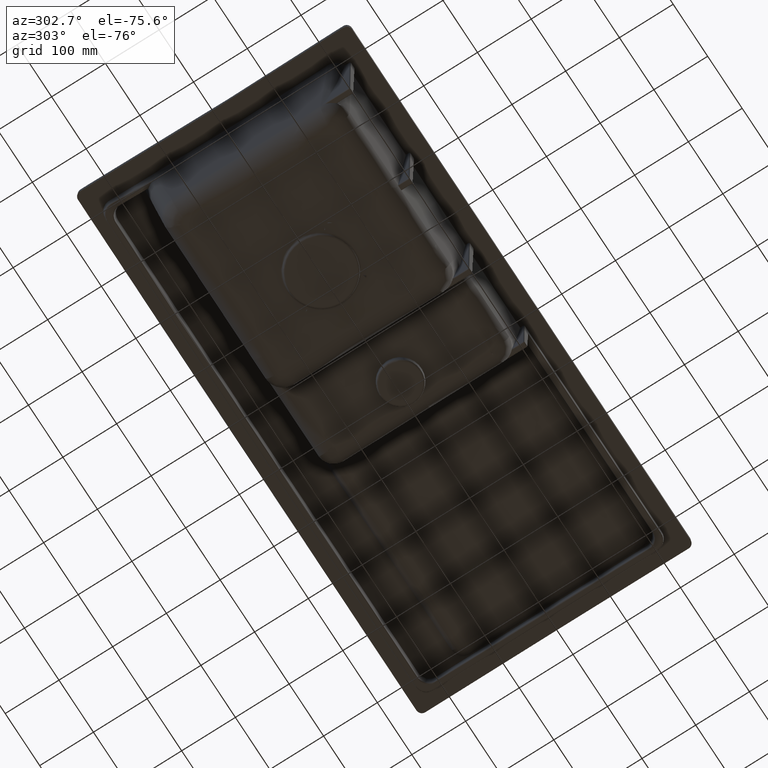
[diagram: clean part render]
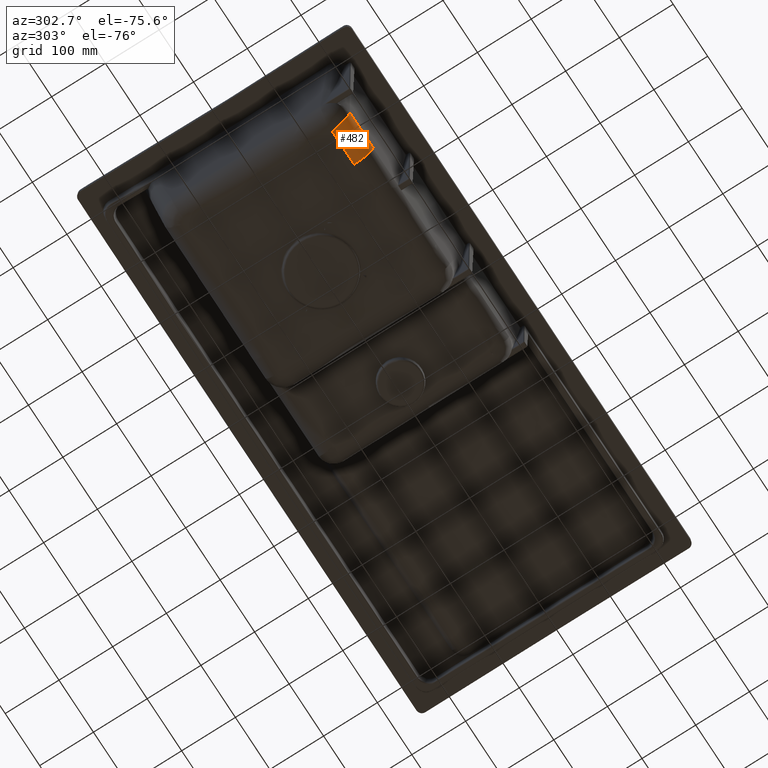
[diagram: same view with one face highlighted and labeled with its STEP entity id]
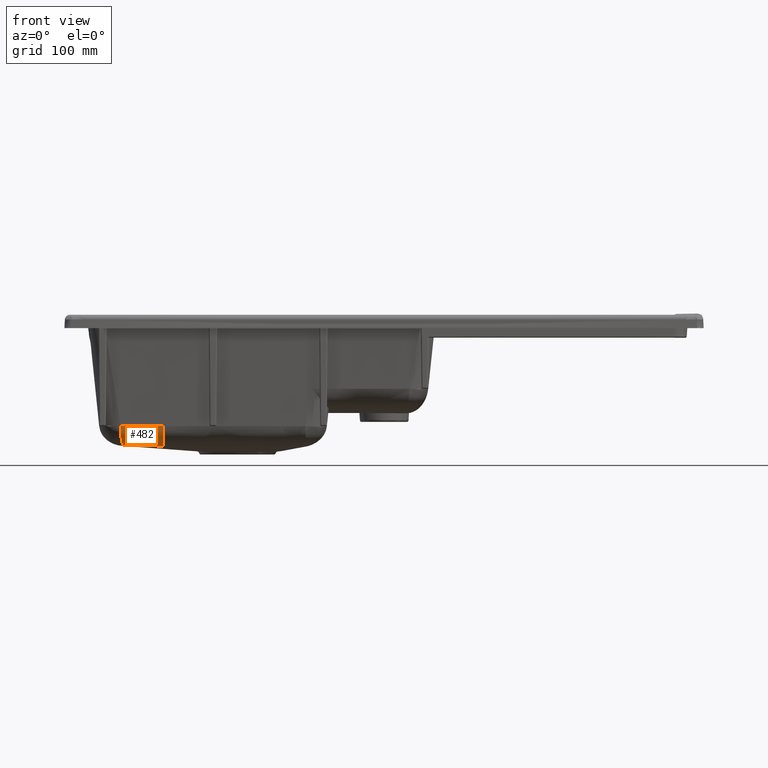
[diagram: same view with one face highlighted and labeled with its STEP entity id]
A machine part, auxiliary view. The second image highlights one B-rep face of the part: STEP entity #482.
A second angle (front view) of the same face is appended — the face is thin or edge-on in the first view.
In plain terms, the highlighted face is a freeform B-spline surface patch.
Its self-contained STEP definition (entity closure, byte-faithful):
#482=ADVANCED_FACE('',(#984),#796,.F.);
#796=B_SPLINE_SURFACE_WITH_KNOTS('',3,3,((#7439,#7440,#7441,#7442,#7443,
#7444,#7445),(#7446,#7447,#7448,#7449,#7450,#7451,#7452),(#7453,#7454,#7455,
#7456,#7457,#7458,#7459),(#7460,#7461,#7462,#7463,#7464,#7465,#7466),(#7467,
#7468,#7469,#7470,#7471,#7472,#7473),(#7474,#7475,#7476,#7477,#7478,#7479,
#7480),(#7481,#7482,#7483,#7484,#7485,#7486,#7487),(#7488,#7489,#7490,#7491,
#7492,#7493,#7494),(#7495,#7496,#7497,#7498,#7499,#7500,#7501),(#7502,#7503,
#7504,#7505,#7506,#7507,#7508),(#7509,#7510,#7511,#7512,#7513,#7514,#7515),
(#7516,#7517,#7518,#7519,#7520,#7521,#7522),(#7523,#7524,#7525,#7526,#7527,
#7528,#7529)),.UNSPECIFIED.,.F.,.F.,.F.,(4,3,3,3,4),(4,3,4),(0.,0.25,0.5,
0.75,1.),(0.,0.5,1.),.UNSPECIFIED.);
#984=FACE_OUTER_BOUND('',#1323,.T.);
#1323=EDGE_LOOP('',(#1813,#1814,#1815,#1816));
#1813=ORIENTED_EDGE('',*,*,#3951,.T.);
#1814=ORIENTED_EDGE('',*,*,#3952,.T.);
#1815=ORIENTED_EDGE('',*,*,#3953,.T.);
#1816=ORIENTED_EDGE('',*,*,#3954,.T.);
#3408=VERTEX_POINT('',#7402);
#3409=VERTEX_POINT('',#7403);
#3410=VERTEX_POINT('',#7411);
#3411=VERTEX_POINT('',#7432);
#3951=EDGE_CURVE('',#3408,#3409,#4767,.T.);
#3952=EDGE_CURVE('',#3409,#3410,#4768,.T.);
#3953=EDGE_CURVE('',#3410,#3411,#4769,.T.);
#3954=EDGE_CURVE('',#3411,#3408,#4770,.T.);
#4767=B_SPLINE_CURVE_WITH_KNOTS('',3,(#7389,#7390,#7391,#7392,#7393,#7394,
#7395,#7396,#7397,#7398,#7399,#7400,#7401),.UNSPECIFIED.,.F.,.F.,(4,3,3,
3,4),(0.,0.245327949630482,0.496885299753655,0.748442649876827,1.),
 .UNSPECIFIED.);
#4768=B_SPLINE_CURVE_WITH_KNOTS('',3,(#7404,#7405,#7406,#7407,#7408,#7409,
#7410),.UNSPECIFIED.,.F.,.F.,(4,3,4),(0.,0.502999999999009,1.),
 .UNSPECIFIED.);
#4769=B_SPLINE_CURVE_WITH_KNOTS('',3,(#7412,#7413,#7414,#7415,#7416,#7417,
#7418,#7419,#7420,#7421,#7422,#7423,#7424,#7425,#7426,#7427,#7428,#7429,
#7430,#7431),.UNSPECIFIED.,.F.,.F.,(4,2,2,2,2,2,2,2,2,4),(0.,0.249999999999994,
0.499999999999989,0.515624999999989,0.531249999999989,0.56249999999999,
0.624999999999992,0.749999999999994,0.874999999999997,1.),.UNSPECIFIED.);
#4770=B_SPLINE_CURVE_WITH_KNOTS('',3,(#7433,#7434,#7435,#7436,#7437,#7438),
 .UNSPECIFIED.,.F.,.F.,(4,2,4),(0.,0.5,1.),.UNSPECIFIED.);
#7389=CARTESIAN_POINT('',(-345.397631166243,-135.522305942543,-205.714445221993));
#7390=CARTESIAN_POINT('',(-345.363334008533,-139.306731002015,-205.340106032975));
#7391=CARTESIAN_POINT('',(-345.33619654164,-143.261658922262,-204.467595560662));
#7392=CARTESIAN_POINT('',(-345.318554196168,-147.130433515993,-202.981137501558));
#7393=CARTESIAN_POINT('',(-345.300463873872,-151.097444557697,-201.456935098283));
#7394=CARTESIAN_POINT('',(-345.292523461988,-154.968085021598,-199.280277152789));
#7395=CARTESIAN_POINT('',(-345.29197543667,-158.3689406588,-196.472978926912));
#7396=CARTESIAN_POINT('',(-345.291427411353,-161.769796296002,-193.665680701035));
#7397=CARTESIAN_POINT('',(-345.297986325779,-164.68721107058,-190.221401994709));
#7398=CARTESIAN_POINT('',(-345.304122679175,-166.789692154017,-186.41397434491));
#7399=CARTESIAN_POINT('',(-345.310259032571,-168.892173237454,-182.60654669511));
#7400=CARTESIAN_POINT('',(-345.315347202764,-170.160992974538,-178.452579316537));
#7401=CARTESIAN_POINT('',(-345.314764388947,-170.575434996131,-174.432337449661));
#7402=CARTESIAN_POINT('',(-345.397630760849,-135.522307890016,-205.714464869636));
#7403=CARTESIAN_POINT('',(-345.31336404638,-170.575434673334,-174.432337179253));
#7404=CARTESIAN_POINT('',(-345.314764388947,-170.575434996131,-174.432337449661));
#7405=CARTESIAN_POINT('',(-356.675914044309,-170.579012224646,-174.434666461764));
#7406=CARTESIAN_POINT('',(-368.037080890592,-170.582684579936,-174.437107666763));
#7407=CARTESIAN_POINT('',(-379.39826493816,-170.586414450872,-174.439624224346));
#7408=CARTESIAN_POINT('',(-390.623927903693,-170.590099830305,-174.442110763349));
#7409=CARTESIAN_POINT('',(-401.849610455387,-170.593841098983,-174.444670373296));
#7410=CARTESIAN_POINT('',(-413.0753115024,-170.59759585289,-174.44727778674));
#7411=CARTESIAN_POINT('',(-413.075312759013,-170.597594236271,-174.447281954641));
#7412=CARTESIAN_POINT('',(-413.0753115024,-170.59759585289,-174.44727778674));
#7413=CARTESIAN_POINT('',(-413.020714935479,-170.164755370717,-178.602963989923));
#7414=CARTESIAN_POINT('',(-412.856482709726,-168.75836249909,-182.985440073222));
#7415=CARTESIAN_POINT('',(-412.297965236743,-163.925067014169,-190.930915427477));
#7416=CARTESIAN_POINT('',(-411.901297772451,-160.530505524843,-194.479218476001));
#7417=CARTESIAN_POINT('',(-411.329793941907,-156.340022081265,-197.39928378021));
#7418=CARTESIAN_POINT('',(-411.308437949995,-156.183909269914,-197.505132879861));
#7419=CARTESIAN_POINT('',(-411.252672899248,-155.777076874854,-197.776947025922));
#7420=CARTESIAN_POINT('',(-411.224526035962,-155.572274090589,-197.910915751503));
#7421=CARTESIAN_POINT('',(-411.139286962734,-154.953890858537,-198.306971984841));
#7422=CARTESIAN_POINT('',(-411.081396264107,-154.536334692712,-198.563209649653));
#7423=CARTESIAN_POINT('',(-410.904486632986,-153.269273256388,-199.308240480006));
#7424=CARTESIAN_POINT('',(-410.782230048505,-152.405361392067,-199.773353298634));
#7425=CARTESIAN_POINT('',(-410.402164678575,-149.768572666315,-201.07164584403));
#7426=CARTESIAN_POINT('',(-410.1310456186,-147.950318723799,-201.807455103431));
#7427=CARTESIAN_POINT('',(-409.551611478404,-144.265952766723,-203.008737514937));
#7428=CARTESIAN_POINT('',(-409.253509855377,-142.356464816904,-203.485637380113));
#7429=CARTESIAN_POINT('',(-408.66812273541,-138.63320305844,-204.165130625958));
#7430=CARTESIAN_POINT('',(-408.376273305571,-136.790415482933,-204.377184395695));
#7431=CARTESIAN_POINT('',(-408.085301711477,-134.994788591871,-204.476432751297));
#7432=CARTESIAN_POINT('',(-408.084653257685,-134.994787611644,-204.476290133985));
#7433=CARTESIAN_POINT('',(-408.084237239826,-134.994800504841,-204.476470725017));
#7434=CARTESIAN_POINT('',(-397.633577756196,-135.114300737085,-204.849156640474));
#7435=CARTESIAN_POINT('',(-387.183972300081,-135.163927078517,-205.138674022243));
#7436=CARTESIAN_POINT('',(-366.288166530615,-135.343142622403,-205.549099522048));
#7437=CARTESIAN_POINT('',(-355.841975500815,-135.432492220644,-205.67140305578));
#7438=CARTESIAN_POINT('',(-345.397631166243,-135.522305942534,-205.714445221994));
#7439=CARTESIAN_POINT('',(-414.058655502334,-134.645061963183,-204.265701714806));
#7440=CARTESIAN_POINT('',(-402.613226006774,-134.810759724382,-204.710958190529));
#7441=CARTESIAN_POINT('',(-391.167780946961,-134.850939753402,-205.057373418928));
#7442=CARTESIAN_POINT('',(-379.72446143978,-134.946472529285,-205.302202354214));
#7443=CARTESIAN_POINT('',(-368.281141932598,-135.042005305168,-205.547031289501));
#7444=CARTESIAN_POINT('',(-356.839800964883,-135.137663063867,-205.692050002668));
#7445=CARTESIAN_POINT('',(-345.400257611074,-135.234356045469,-205.741999327934));
#7446=CARTESIAN_POINT('',(-414.027961343663,-138.465493206472,-204.120077529412));
#7447=CARTESIAN_POINT('',(-402.568613159632,-138.650041680478,-204.530704245237));
#7448=CARTESIAN_POINT('',(-391.125559623931,-138.709564618327,-204.841542489809));
#7449=CARTESIAN_POINT('',(-379.682092265162,-138.81352523104,-205.050781364524));
#7450=CARTESIAN_POINT('',(-368.238624906393,-138.917485843753,-205.260020239239));
#7451=CARTESIAN_POINT('',(-356.798004778292,-139.014295757361,-205.369289309265));
#7452=CARTESIAN_POINT('',(-345.364718287075,-139.105827323954,-205.384019991747));
#7453=CARTESIAN_POINT('',(-413.98360921901,-142.514940197766,-203.464468751152));
#7454=CARTESIAN_POINT('',(-402.516918117153,-142.712125404235,-203.827893211738));
#7455=CARTESIAN_POINT('',(-391.078893002407,-142.784287464013,-204.097617690196));
#7456=CARTESIAN_POINT('',(-379.638581655062,-142.889402336767,-204.269649196013));
#7457=CARTESIAN_POINT('',(-368.198270307718,-142.994517209522,-204.441680701829));
#7458=CARTESIAN_POINT('',(-356.761511246543,-143.084822902419,-204.518419418854));
#7459=CARTESIAN_POINT('',(-345.336644518463,-143.163422474289,-204.505339904834));
#7460=CARTESIAN_POINT('',(-413.92719976876,-146.516719247963,-202.146227199634));
#7461=CARTESIAN_POINT('',(-402.461287806527,-146.714648767769,-202.454188231955));
#7462=CARTESIAN_POINT('',(-391.030910875568,-146.790561218275,-202.682032567678));
#7463=CARTESIAN_POINT('',(-379.597167554437,-146.889707704384,-202.820007076554));
#7464=CARTESIAN_POINT('',(-368.163424233306,-146.988854190492,-202.95798158543));
#7465=CARTESIAN_POINT('',(-356.733572889152,-147.067786420843,-203.01010578578));
#7466=CARTESIAN_POINT('',(-345.318554196168,-147.130433515993,-202.981137501558));
#7467=CARTESIAN_POINT('',(-413.870790318509,-150.51849829816,-200.827985648116));
#7468=CARTESIAN_POINT('',(-402.4056574959,-150.717172131304,-201.080483252171));
#7469=CARTESIAN_POINT('',(-390.982928748729,-150.796834972538,-201.266447445161));
#7470=CARTESIAN_POINT('',(-379.555753453812,-150.890013072,-201.370364957095));
#7471=CARTESIAN_POINT('',(-368.128578158894,-150.983191171462,-201.47428246903));
#7472=CARTESIAN_POINT('',(-356.705634531762,-151.050749939267,-201.501792152707));
#7473=CARTESIAN_POINT('',(-345.300463873872,-151.097444557697,-201.456935098283));
#7474=CARTESIAN_POINT('',(-413.802083576634,-154.467268411737,-198.838907279893));
#7475=CARTESIAN_POINT('',(-402.346037112222,-154.654093872211,-199.027450516157));
#7476=CARTESIAN_POINT('',(-390.933624909871,-154.728333343728,-199.170973301152));
#7477=CARTESIAN_POINT('',(-379.516486897913,-154.808362975429,-199.244229923272));
#7478=CARTESIAN_POINT('',(-368.099348885956,-154.888392607131,-199.317486545392));
#7479=CARTESIAN_POINT('',(-356.686398884081,-154.939938755492,-199.328649504003));
#7480=CARTESIAN_POINT('',(-345.292523461988,-154.968085021598,-199.280277152789));
#7481=CARTESIAN_POINT('',(-413.733581047071,-157.964688110309,-196.171322698402));
#7482=CARTESIAN_POINT('',(-402.291709491407,-158.125959399668,-196.303535102657));
#7483=CARTESIAN_POINT('',(-390.890029010529,-158.188423456667,-196.411846723571));
#7484=CARTESIAN_POINT('',(-379.483947463692,-158.252590318299,-196.462467084861));
#7485=CARTESIAN_POINT('',(-368.077865916855,-158.31675717993,-196.513087446151));
#7486=CARTESIAN_POINT('',(-356.675572330989,-158.354013878308,-196.51617349093));
#7487=CARTESIAN_POINT('',(-345.29197543667,-158.3689406588,-196.472978926912));
#7488=CARTESIAN_POINT('',(-413.665078517508,-161.462107808882,-193.50373811691));
#7489=CARTESIAN_POINT('',(-402.237381870591,-161.597824927126,-193.579619689157));
#7490=CARTESIAN_POINT('',(-390.846433111188,-161.648513569606,-193.652720145991));
#7491=CARTESIAN_POINT('',(-379.451408029471,-161.696817661168,-193.680704246451));
#7492=CARTESIAN_POINT('',(-368.056382947753,-161.74512175273,-193.708688346911));
#7493=CARTESIAN_POINT('',(-356.664745777897,-161.768089001124,-193.703697477857));
#7494=CARTESIAN_POINT('',(-345.291427411353,-161.769796296002,-193.665680701035));
#7495=CARTESIAN_POINT('',(-413.597697775672,-164.493126035476,-190.147801887097));
#7496=CARTESIAN_POINT('',(-402.188998889076,-164.588620225221,-190.17738660611));
#7497=CARTESIAN_POINT('',(-390.80899980598,-164.621371704973,-190.223478657021));
#7498=CARTESIAN_POINT('',(-379.425849376772,-164.651409215285,-190.23736133975));
#7499=CARTESIAN_POINT('',(-368.042698947564,-164.681446725598,-190.251244022478));
#7500=CARTESIAN_POINT('',(-356.662192134829,-164.692463116032,-190.246248977552));
#7501=CARTESIAN_POINT('',(-345.297986325779,-164.68721107058,-190.221401994709));
#7502=CARTESIAN_POINT('',(-413.550946135212,-166.678795702247,-186.381399363538));
#7503=CARTESIAN_POINT('',(-402.158048624298,-166.73869658569,-186.389575306816));
#7504=CARTESIAN_POINT('',(-390.785653984957,-166.757449212091,-186.418906006768));
#7505=CARTESIAN_POINT('',(-379.411054633821,-166.77438439379,-186.425915153216));
#7506=CARTESIAN_POINT('',(-368.036455282685,-166.791319575488,-186.432924299664));
#7507=CARTESIAN_POINT('',(-356.663764836736,-166.795856751138,-186.429282280871));
#7508=CARTESIAN_POINT('',(-345.304122679175,-166.789692154017,-186.41397434491));
#7509=CARTESIAN_POINT('',(-413.504194494752,-168.864465369017,-182.614996839979));
#7510=CARTESIAN_POINT('',(-402.12709835952,-168.888772946159,-182.601764007523));
#7511=CARTESIAN_POINT('',(-390.762308163934,-168.893526719209,-182.614333356514));
#7512=CARTESIAN_POINT('',(-379.39625989087,-168.897359572294,-182.614468966682));
#7513=CARTESIAN_POINT('',(-368.030211617805,-168.901192425378,-182.61460457685));
#7514=CARTESIAN_POINT('',(-356.665337538643,-168.899250386244,-182.612315584191));
#7515=CARTESIAN_POINT('',(-345.310259032571,-168.892173237454,-182.60654669511));
#7516=CARTESIAN_POINT('',(-413.479691294311,-170.180004728188,-178.457870755012));
#7517=CARTESIAN_POINT('',(-402.114394351899,-170.177631329998,-178.448747217094));
#7518=CARTESIAN_POINT('',(-390.753605025418,-170.17373957067,-178.454260794254));
#7519=CARTESIAN_POINT('',(-379.392465170453,-170.170476662735,-178.454172860486));
#7520=CARTESIAN_POINT('',(-368.031325315488,-170.1672137548,-178.454084926717));
#7521=CARTESIAN_POINT('',(-356.6706830816,-170.164029002788,-178.453680212936));
#7522=CARTESIAN_POINT('',(-345.315347202764,-170.160992974538,-178.452579316537));
#7523=CARTESIAN_POINT('',(-413.481876135795,-170.597731845774,-174.447372241082));
#7524=CARTESIAN_POINT('',(-402.120653095214,-170.593931439572,-174.444732185393));
#7525=CARTESIAN_POINT('',(-390.759448985727,-170.590144321808,-174.442140781928));
#7526=CARTESIAN_POINT('',(-379.39826493816,-170.586414450872,-174.439624224346));
#7527=CARTESIAN_POINT('',(-368.037080890592,-170.582684579936,-174.437107666763));
#7528=CARTESIAN_POINT('',(-356.675914044309,-170.579012224646,-174.434666461764));
#7529=CARTESIAN_POINT('',(-345.314764388947,-170.575434996131,-174.432337449661));